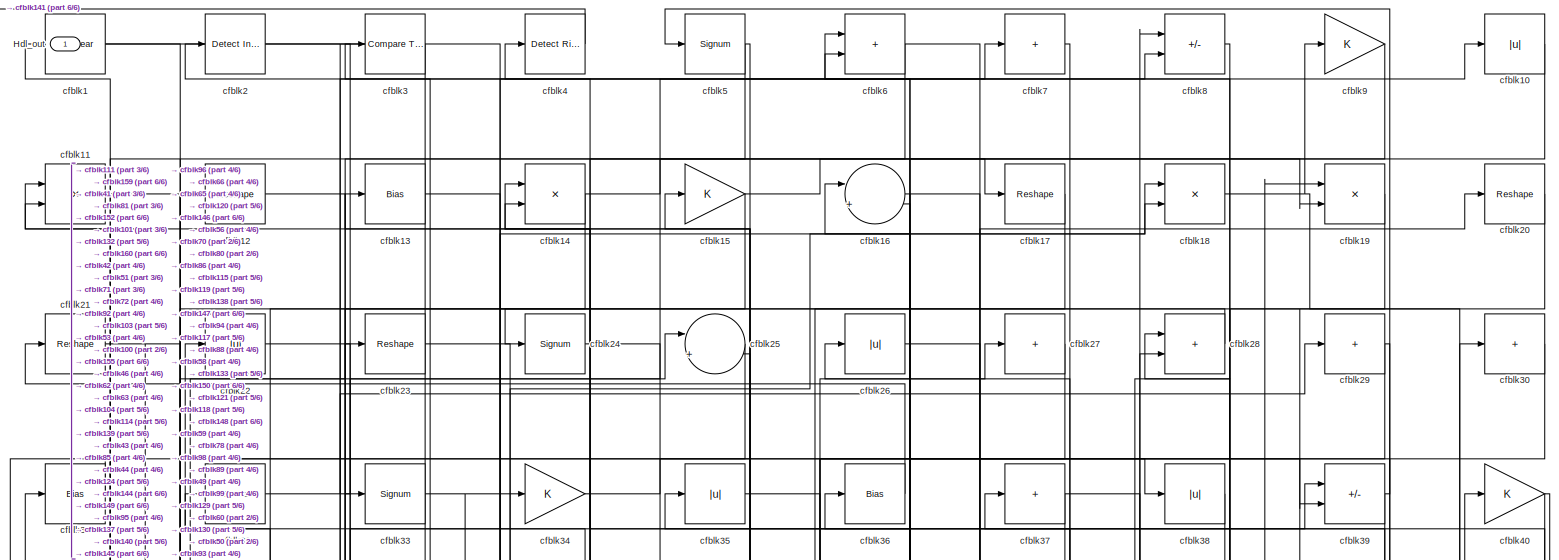
[diagram: root canvas - part 1/6, full width, top band]
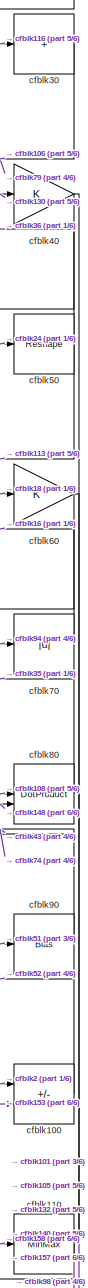
[diagram: root canvas - part 2/6, middle right region]
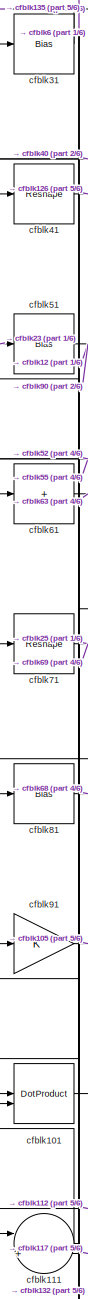
[diagram: root canvas - part 3/6, middle left region]
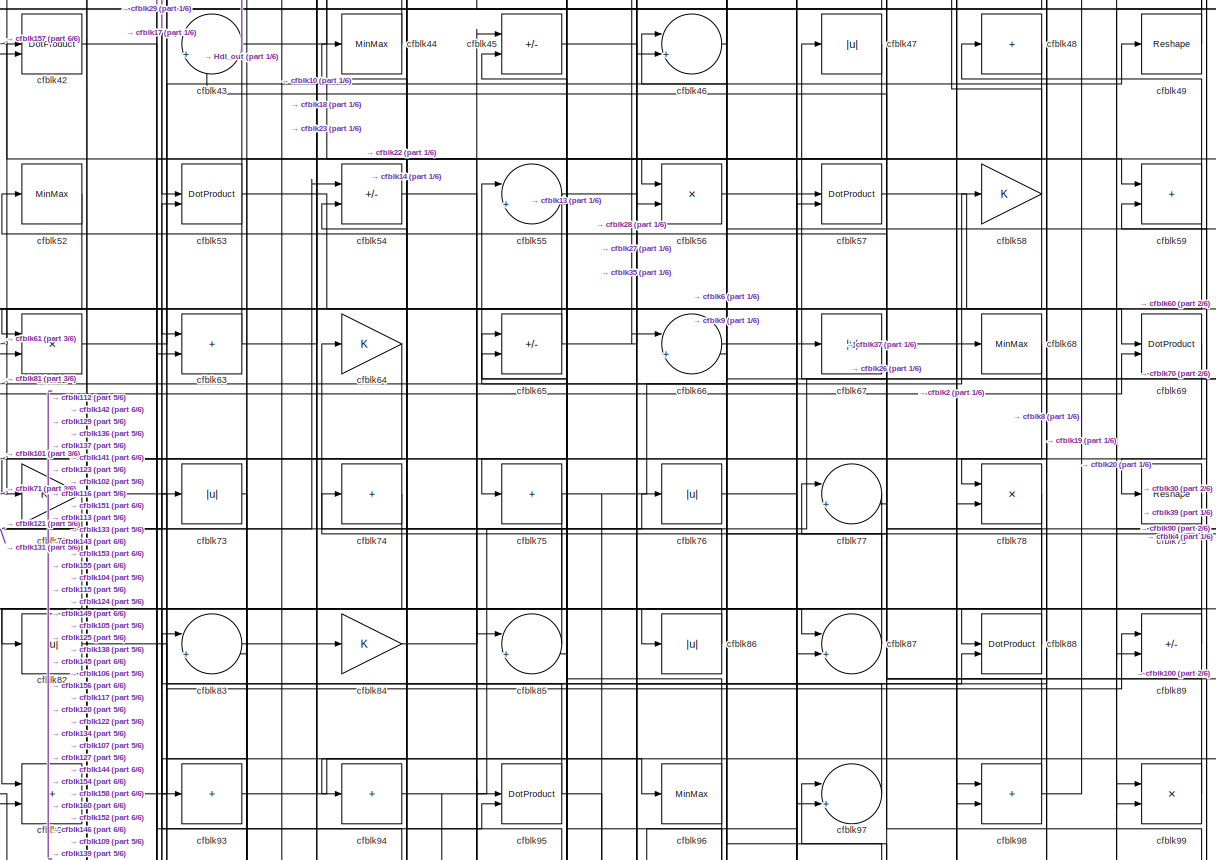
[diagram: root canvas - part 4/6, full width, middle band]
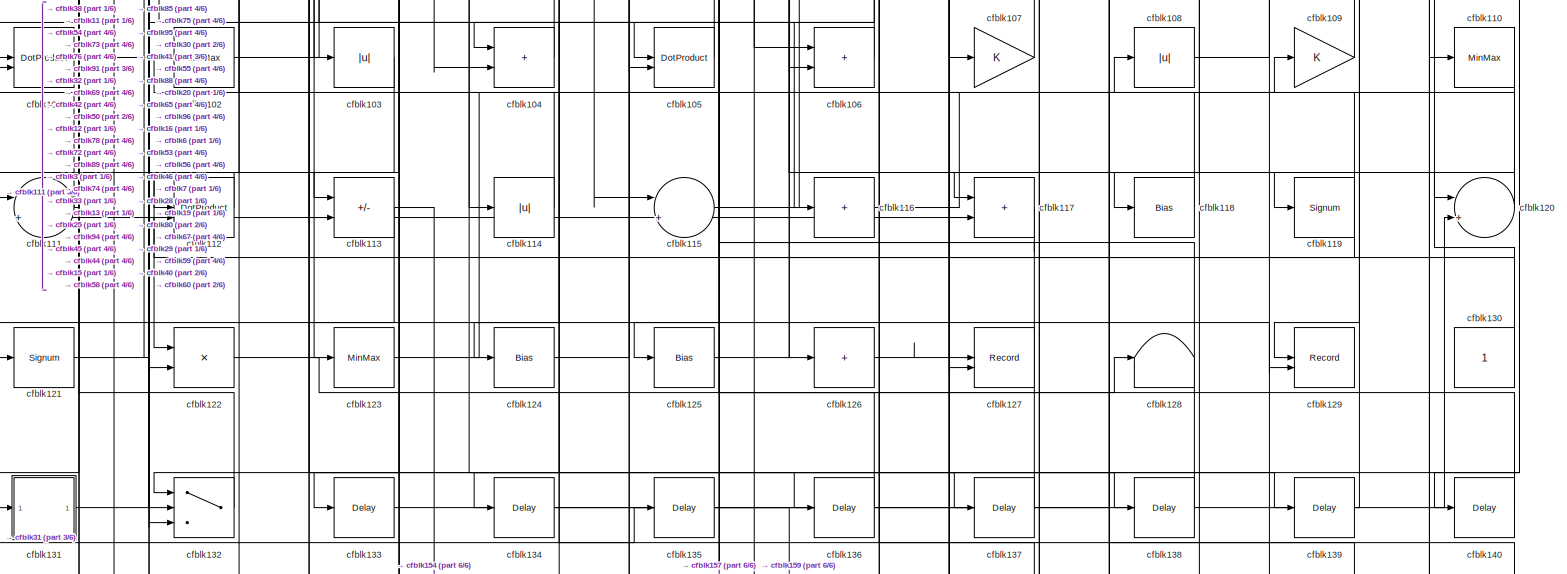
[diagram: root canvas - part 5/6, full width, bottom band]
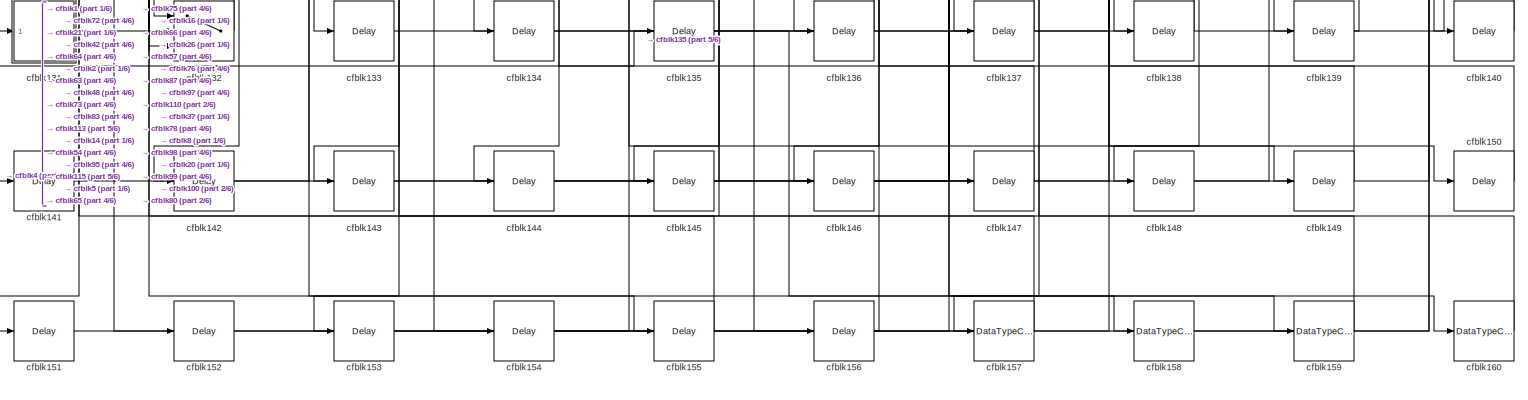
[diagram: root canvas - part 6/6, full width, bottom band]
MODEL slx_397ffaf1d0f8
KIND model
CONFIG AbsTol = auto
CONFIG EnableMultiTasking = off
CONFIG FixedStep = auto
CONFIG MaxStep = auto
CONFIG MinStep = auto
CONFIG RelTol = 1e-3
CONFIG SampleTimeConstraint = Unconstrained
CONFIG SolverName = VariableStepAuto
CONFIG StartTime = 0.0
CONFIG StopTime = 10.0
BLOCK [Outport] Hdl_out
  OutDataTypeStr = uint8
BLOCK [Reference] cfblk1  REF=simulink/Logic and Bit
Operations/Bit Clear
  LibrarySourceBlock = hdlsllib/Logic and Bit\nOperations/Bit Clear
  SourceBlock = simulink/Logic and Bit\nOperations/Bit Clear
  SourceType = Bit Clear
BLOCK [Abs] cfblk10
  OutDataTypeStr = uint8
  SaturateOnIntegerOverflow = off
BLOCK [Sum] cfblk100
  IconShape = rectangular
  Inputs = +-
  OutDataTypeStr = uint8
BLOCK [DotProduct] cfblk101
  OutDataTypeStr = uint8
BLOCK [MinMax] cfblk102
  OutDataTypeStr = uint8
BLOCK [Abs] cfblk103
  OutDataTypeStr = uint8
  SaturateOnIntegerOverflow = off
BLOCK [Sum] cfblk104
  IconShape = rectangular
  OutDataTypeStr = uint8
BLOCK [DotProduct] cfblk105
  OutDataTypeStr = uint8
BLOCK [Sum] cfblk106
  IconShape = rectangular
  OutDataTypeStr = uint8
BLOCK [Gain] cfblk107
  OutDataTypeStr = uint8
BLOCK [Abs] cfblk108
  OutDataTypeStr = uint8
  SaturateOnIntegerOverflow = off
BLOCK [Gain] cfblk109
  OutDataTypeStr = uint8
BLOCK [Product] cfblk11
  Inputs = */
  OutDataTypeStr = uint8
  RndMeth = Zero
  SaturateOnIntegerOverflow = on
BLOCK [MinMax] cfblk110
  OutDataTypeStr = uint8
BLOCK [Sum] cfblk111
  Inputs = |++
  OutDataTypeStr = uint8
BLOCK [DotProduct] cfblk112
  OutDataTypeStr = uint8
BLOCK [Sum] cfblk113
  IconShape = rectangular
  Inputs = +-
  OutDataTypeStr = uint8
BLOCK [Abs] cfblk114
  OutDataTypeStr = uint8
  SaturateOnIntegerOverflow = off
BLOCK [Sum] cfblk115
  Inputs = |++
  OutDataTypeStr = uint8
BLOCK [Sum] cfblk116
  IconShape = rectangular
  Inputs = +
  OutDataTypeStr = uint8
BLOCK [Sum] cfblk117
  IconShape = rectangular
  OutDataTypeStr = uint8
BLOCK [Bias] cfblk118
  Bias = 0.0
  SaturateOnIntegerOverflow = off
BLOCK [Signum] cfblk119
BLOCK [Reshape] cfblk12
BLOCK [Sum] cfblk120
  Inputs = |++
  OutDataTypeStr = uint8
BLOCK [Signum] cfblk121
BLOCK [Product] cfblk122
  Inputs = */
  OutDataTypeStr = uint8
  RndMeth = Zero
  SaturateOnIntegerOverflow = on
BLOCK [MinMax] cfblk123
  OutDataTypeStr = uint8
BLOCK [Bias] cfblk124
  Bias = 0.0
  SaturateOnIntegerOverflow = off
BLOCK [Bias] cfblk125
  Bias = 0.0
  SaturateOnIntegerOverflow = off
BLOCK [Sum] cfblk126
  IconShape = rectangular
  Inputs = +
  OutDataTypeStr = uint8
BLOCK [Record] cfblk127
  CompatibilityTag = XY
  FileSettingsInternal = {"entries":[{"content":{"excelSettings":{"content":{},"type":"Streamout.ExcelSettings"}},"type":"Streamout.FileSettingStorage","uuid":""}],"packageUris":["http:\/\/schema.mathworks.com\/mf0\/streamout_blocks\/R2020a"],"version":"1.0"}
  Layout = [1 1]
  SignalsInternal = {"entries":[{"content":{"signals":[{"content":{"blockPath":[],"dimensions":[1],"domain":"","lineColor":"#a2142f","plots":[1],"port":1,"signalID":46920,"signalName":"cfblk126"},"type":"RecordBlkView.Signal","uuid":""},{"content":{"blockPath":[],"dimensions":[1],"domain":"","lineColor":"#139fff","plots":[1],"port":2,"signalID":46923,"signalName":"cfblk56"},"type":"RecordBlkView.Signal","uuid":""}]},...<+143ch>
  VisualizationBindings = {"xyplotplugin":{"info":[{"series":[{"bindingParametersList":[{"parameter":"X-Axis","signalID":46920,"signalName":"cfblk126"},{"parameter":"Y-Axis","signalID":46923,"signalName":"cfblk56"}],"seriesID":23758}],"subplotID":1}]}}
  st = -1
BLOCK [Terminator] cfblk128
BLOCK [Record] cfblk129
  CompatibilityTag = XY
  FileSettingsInternal = {"entries":[{"content":{"excelSettings":{"content":{},"type":"Streamout.ExcelSettings"}},"type":"Streamout.FileSettingStorage","uuid":""}],"packageUris":["http:\/\/schema.mathworks.com\/mf0\/streamout_blocks\/R2020a"],"version":"1.0"}
  Layout = [1 1]
  SignalsInternal = {"entries":[{"content":{"signals":[{"content":{"blockPath":[],"dimensions":[1],"domain":"","lineColor":"#a2142f","plots":[1],"port":1,"signalID":46912,"signalName":"cfblk29"},"type":"RecordBlkView.Signal","uuid":""},{"content":{"blockPath":[],"dimensions":[1],"domain":"","lineColor":"#139fff","plots":[1],"port":2,"signalID":46915,"signalName":"cfblk42"},"type":"RecordBlkView.Signal","uuid":""}]},"...<+142ch>
  VisualizationBindings = {"xyplotplugin":{"info":[{"series":[{"bindingParametersList":[{"parameter":"X-Axis","signalID":46912,"signalName":"cfblk29"},{"parameter":"Y-Axis","signalID":46915,"signalName":"cfblk42"}],"seriesID":30357}],"subplotID":1}]}}
  st = -1
BLOCK [Bias] cfblk13
  Bias = 0.0
  SaturateOnIntegerOverflow = off
BLOCK [Constant] cfblk130
  OutDataTypeStr = uint8
  SampleTime = -1
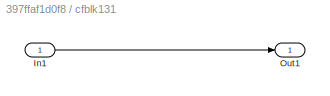
BLOCK [SubSystem] cfblk131
  LibrarySourceBlock = hdlsllib/Ports &\nSubsystems/Subsystem
BLOCK [Inport] cfblk131/In1
BLOCK [Outport] cfblk131/Out1
BLOCK [Switch] cfblk132
  InputSameDT = off
  OutDataTypeStr = uint8
  SaturateOnIntegerOverflow = off
BLOCK [Delay] cfblk133
  InputPortMap = u0
  SampleTime = 1
BLOCK [Delay] cfblk134
  InputPortMap = u0
  SampleTime = 1
BLOCK [Delay] cfblk135
  InputPortMap = u0
  SampleTime = 1
BLOCK [Delay] cfblk136
  InputPortMap = u0
  SampleTime = 1
BLOCK [Delay] cfblk137
  InputPortMap = u0
  SampleTime = 1
BLOCK [Delay] cfblk138
  InputPortMap = u0
  SampleTime = 1
BLOCK [Delay] cfblk139
  InputPortMap = u0
  SampleTime = 1
BLOCK [Product] cfblk14
  Inputs = */
  OutDataTypeStr = uint8
  RndMeth = Zero
  SaturateOnIntegerOverflow = on
BLOCK [Delay] cfblk140
  InputPortMap = u0
  SampleTime = 1
BLOCK [Delay] cfblk141
  InputPortMap = u0
  SampleTime = 1
BLOCK [Delay] cfblk142
  InputPortMap = u0
  SampleTime = 1
BLOCK [Delay] cfblk143
  InputPortMap = u0
  SampleTime = 1
BLOCK [Delay] cfblk144
  InputPortMap = u0
  SampleTime = 1
BLOCK [Delay] cfblk145
  InputPortMap = u0
  SampleTime = 1
BLOCK [Delay] cfblk146
  InputPortMap = u0
  SampleTime = 1
BLOCK [Delay] cfblk147
  InputPortMap = u0
  SampleTime = 1
BLOCK [Delay] cfblk148
  InputPortMap = u0
  SampleTime = 1
BLOCK [Delay] cfblk149
  InputPortMap = u0
  SampleTime = 1
BLOCK [Gain] cfblk15
  OutDataTypeStr = uint8
BLOCK [Delay] cfblk150
  InputPortMap = u0
  SampleTime = 1
BLOCK [Delay] cfblk151
  InputPortMap = u0
  SampleTime = 1
BLOCK [Delay] cfblk152
  InputPortMap = u0
  SampleTime = 1
BLOCK [Delay] cfblk153
  InputPortMap = u0
  SampleTime = 1
BLOCK [Delay] cfblk154
  InputPortMap = u0
  SampleTime = 1
BLOCK [Delay] cfblk155
  InputPortMap = u0
  SampleTime = 1
BLOCK [Delay] cfblk156
  InputPortMap = u0
  SampleTime = 1
BLOCK [DataTypeConversion] cfblk157
  OutDataTypeStr = uint8
  RndMeth = Floor
  SaturateOnIntegerOverflow = off
BLOCK [DataTypeConversion] cfblk158
  OutDataTypeStr = uint8
  RndMeth = Floor
  SaturateOnIntegerOverflow = off
BLOCK [DataTypeConversion] cfblk159
  OutDataTypeStr = uint8
  RndMeth = Floor
  SaturateOnIntegerOverflow = off
BLOCK [Sum] cfblk16
  Inputs = |++
  OutDataTypeStr = uint8
BLOCK [DataTypeConversion] cfblk160
  OutDataTypeStr = uint8
  RndMeth = Floor
  SaturateOnIntegerOverflow = off
BLOCK [Reshape] cfblk17
BLOCK [Product] cfblk18
  Inputs = */
  OutDataTypeStr = uint8
  RndMeth = Zero
  SaturateOnIntegerOverflow = on
BLOCK [Product] cfblk19
  Inputs = */
  OutDataTypeStr = uint8
  RndMeth = Zero
  SaturateOnIntegerOverflow = on
BLOCK [Reference] cfblk2  REF=simulink/Logic and Bit
Operations/Detect
Increase
  LibrarySourceBlock = hdlsllib/Logic and Bit\nOperations/Detect\nIncrease
  SourceBlock = simulink/Logic and Bit\nOperations/Detect\nIncrease
  SourceType = Detect Increase
BLOCK [Reshape] cfblk20
BLOCK [Reshape] cfblk21
BLOCK [Abs] cfblk22
  OutDataTypeStr = uint8
  SaturateOnIntegerOverflow = off
BLOCK [Reshape] cfblk23
BLOCK [Signum] cfblk24
BLOCK [Sum] cfblk25
  Inputs = |++
  OutDataTypeStr = uint8
BLOCK [Abs] cfblk26
  OutDataTypeStr = uint8
  SaturateOnIntegerOverflow = off
BLOCK [Sum] cfblk27
  IconShape = rectangular
  Inputs = +
  OutDataTypeStr = uint8
BLOCK [Sum] cfblk28
  IconShape = rectangular
  OutDataTypeStr = uint8
BLOCK [Sum] cfblk29
  IconShape = rectangular
  Inputs = +
  OutDataTypeStr = uint8
BLOCK [Reference] cfblk3  REF=hdlsllib/Logic and Bit
Operations/Compare
To Zero
  SourceBlock = hdlsllib/Logic and Bit\nOperations/Compare\nTo Zero
  SourceType = Compare To Zero
BLOCK [Sum] cfblk30
  IconShape = rectangular
  Inputs = +
  OutDataTypeStr = uint8
BLOCK [Bias] cfblk31
  Bias = 0.0
  SaturateOnIntegerOverflow = off
BLOCK [MinMax] cfblk32
  OutDataTypeStr = uint8
BLOCK [Signum] cfblk33
BLOCK [Gain] cfblk34
  OutDataTypeStr = uint8
BLOCK [Abs] cfblk35
  OutDataTypeStr = uint8
  SaturateOnIntegerOverflow = off
BLOCK [Bias] cfblk36
  Bias = 0.0
  SaturateOnIntegerOverflow = off
BLOCK [Sum] cfblk37
  IconShape = rectangular
  Inputs = +
  OutDataTypeStr = uint8
BLOCK [Abs] cfblk38
  OutDataTypeStr = uint8
  SaturateOnIntegerOverflow = off
BLOCK [Sum] cfblk39
  IconShape = rectangular
  Inputs = +-
  OutDataTypeStr = uint8
BLOCK [Reference] cfblk4  REF=hdlsllib/Logic and Bit
Operations/Detect Rise
Positive
  SourceBlock = hdlsllib/Logic and Bit\nOperations/Detect Rise\nPositive
  SourceType = Detect Rise Positive
BLOCK [Gain] cfblk40
  OutDataTypeStr = uint8
BLOCK [Reshape] cfblk41
BLOCK [DotProduct] cfblk42
  OutDataTypeStr = uint8
BLOCK [Sum] cfblk43
  Inputs = |++
  OutDataTypeStr = uint8
BLOCK [MinMax] cfblk44
  OutDataTypeStr = uint8
BLOCK [Sum] cfblk45
  IconShape = rectangular
  Inputs = +-
  OutDataTypeStr = uint8
BLOCK [Sum] cfblk46
  Inputs = |++
  OutDataTypeStr = uint8
BLOCK [Abs] cfblk47
  OutDataTypeStr = uint8
  SaturateOnIntegerOverflow = off
BLOCK [Sum] cfblk48
  IconShape = rectangular
  Inputs = +
  OutDataTypeStr = uint8
BLOCK [Reshape] cfblk49
BLOCK [Signum] cfblk5
BLOCK [Reshape] cfblk50
BLOCK [Bias] cfblk51
  Bias = 0.0
  SaturateOnIntegerOverflow = off
BLOCK [MinMax] cfblk52
  OutDataTypeStr = uint8
BLOCK [DotProduct] cfblk53
  OutDataTypeStr = uint8
BLOCK [Sum] cfblk54
  IconShape = rectangular
  Inputs = +-
  OutDataTypeStr = uint8
BLOCK [Sum] cfblk55
  Inputs = |++
  OutDataTypeStr = uint8
BLOCK [Product] cfblk56
  Inputs = */
  OutDataTypeStr = uint8
  RndMeth = Zero
  SaturateOnIntegerOverflow = on
BLOCK [DotProduct] cfblk57
  OutDataTypeStr = uint8
BLOCK [Gain] cfblk58
  OutDataTypeStr = uint8
BLOCK [Sum] cfblk59
  IconShape = rectangular
  OutDataTypeStr = uint8
BLOCK [Sum] cfblk6
  IconShape = rectangular
  OutDataTypeStr = uint8
BLOCK [Gain] cfblk60
  OutDataTypeStr = uint8
BLOCK [Sum] cfblk61
  IconShape = rectangular
  Inputs = +
  OutDataTypeStr = uint8
BLOCK [Product] cfblk62
  Inputs = */
  OutDataTypeStr = uint8
  RndMeth = Zero
  SaturateOnIntegerOverflow = on
BLOCK [Sum] cfblk63
  IconShape = rectangular
  OutDataTypeStr = uint8
BLOCK [Gain] cfblk64
  OutDataTypeStr = uint8
BLOCK [Sum] cfblk65
  IconShape = rectangular
  Inputs = +-
  OutDataTypeStr = uint8
BLOCK [Sum] cfblk66
  Inputs = |++
  OutDataTypeStr = uint8
BLOCK [Abs] cfblk67
  OutDataTypeStr = uint8
  SaturateOnIntegerOverflow = off
BLOCK [MinMax] cfblk68
  OutDataTypeStr = uint8
BLOCK [DotProduct] cfblk69
  OutDataTypeStr = uint8
BLOCK [Sum] cfblk7
  IconShape = rectangular
  Inputs = +
  OutDataTypeStr = uint8
BLOCK [Abs] cfblk70
  OutDataTypeStr = uint8
  SaturateOnIntegerOverflow = off
BLOCK [Reshape] cfblk71
BLOCK [Gain] cfblk72
  OutDataTypeStr = uint8
BLOCK [Abs] cfblk73
  OutDataTypeStr = uint8
  SaturateOnIntegerOverflow = off
BLOCK [Sum] cfblk74
  IconShape = rectangular
  Inputs = +
  OutDataTypeStr = uint8
BLOCK [Sum] cfblk75
  IconShape = rectangular
  Inputs = +
  OutDataTypeStr = uint8
BLOCK [Abs] cfblk76
  OutDataTypeStr = uint8
  SaturateOnIntegerOverflow = off
BLOCK [Sum] cfblk77
  Inputs = |++
  OutDataTypeStr = uint8
BLOCK [Product] cfblk78
  Inputs = */
  OutDataTypeStr = uint8
  RndMeth = Zero
  SaturateOnIntegerOverflow = on
BLOCK [Reshape] cfblk79
BLOCK [Sum] cfblk8
  IconShape = rectangular
  Inputs = +-
  OutDataTypeStr = uint8
BLOCK [DotProduct] cfblk80
  OutDataTypeStr = uint8
BLOCK [Bias] cfblk81
  Bias = 0.0
  SaturateOnIntegerOverflow = off
BLOCK [Abs] cfblk82
  OutDataTypeStr = uint8
  SaturateOnIntegerOverflow = off
BLOCK [Sum] cfblk83
  Inputs = |++
  OutDataTypeStr = uint8
BLOCK [Gain] cfblk84
  OutDataTypeStr = uint8
BLOCK [Sum] cfblk85
  Inputs = |++
  OutDataTypeStr = uint8
BLOCK [Abs] cfblk86
  OutDataTypeStr = uint8
  SaturateOnIntegerOverflow = off
BLOCK [Sum] cfblk87
  Inputs = |++
  OutDataTypeStr = uint8
BLOCK [DotProduct] cfblk88
  OutDataTypeStr = uint8
BLOCK [Sum] cfblk89
  IconShape = rectangular
  Inputs = +-
  OutDataTypeStr = uint8
BLOCK [Gain] cfblk9
  OutDataTypeStr = uint8
BLOCK [Bias] cfblk90
  Bias = 0.0
  SaturateOnIntegerOverflow = off
BLOCK [Gain] cfblk91
  OutDataTypeStr = uint8
BLOCK [Sum] cfblk92
  IconShape = rectangular
  OutDataTypeStr = uint8
BLOCK [Sum] cfblk93
  IconShape = rectangular
  Inputs = +
  OutDataTypeStr = uint8
BLOCK [Sum] cfblk94
  IconShape = rectangular
  Inputs = +
  OutDataTypeStr = uint8
BLOCK [DotProduct] cfblk95
  OutDataTypeStr = uint8
BLOCK [MinMax] cfblk96
  OutDataTypeStr = uint8
BLOCK [Sum] cfblk97
  Inputs = |++
  OutDataTypeStr = uint8
BLOCK [Sum] cfblk98
  IconShape = rectangular
  OutDataTypeStr = uint8
BLOCK [Product] cfblk99
  Inputs = */
  OutDataTypeStr = uint8
  RndMeth = Zero
  SaturateOnIntegerOverflow = on
LINE cfblk100:1 -> cfblk52:1
NET cfblk101:1 -> cfblk23:1, cfblk51:1
LINE cfblk102:1 -> cfblk89:1
LINE cfblk103:1 -> cfblk122:1
LINE cfblk104:1 -> cfblk53:2
LINE cfblk105:1 -> cfblk44:1
NET cfblk106:1 -> cfblk104:1, cfblk65:1
LINE cfblk107:1 -> cfblk46:1
LINE cfblk108:1 -> cfblk80:1
LINE cfblk109:1 -> cfblk67:1
LINE cfblk10:1 -> cfblk43:1
LINE cfblk110:1 -> cfblk157:1
NET cfblk111:1 -> cfblk11:1, cfblk31:1
LINE cfblk112:1 -> cfblk111:1
NET cfblk113:1 -> cfblk131:1, cfblk154:1
LINE cfblk114:1 -> cfblk32:1
NET cfblk115:1 -> cfblk20:1, cfblk85:2
LINE cfblk116:1 -> cfblk30:1
LINE cfblk117:1 -> cfblk111:2
LINE cfblk118:1 -> cfblk3:1
NET cfblk119:1 -> cfblk102:1, cfblk112:2
LINE cfblk11:1 -> cfblk132:2
NET cfblk120:1 -> cfblk108:1, cfblk6:2
NET cfblk121:1 -> cfblk54:1, cfblk76:1
LINE cfblk122:1 -> cfblk128:1
LINE cfblk123:1 -> cfblk109:1
LINE cfblk124:1 -> cfblk45:1
LINE cfblk125:1 -> cfblk88:2
LINE cfblk126:1 -> cfblk127:1
LINE cfblk12:1 -> cfblk103:1
NET cfblk130:1 -> cfblk15:1, cfblk40:1
LINE cfblk131/In1:1 -> cfblk131/Out1:1
LINE cfblk131:1 -> cfblk73:1
LINE cfblk132:1 -> cfblk91:1
LINE cfblk133:1 -> cfblk28:2
LINE cfblk134:1 -> cfblk120:2
LINE cfblk135:1 -> cfblk159:1
LINE cfblk136:1 -> cfblk45:2
LINE cfblk137:1 -> cfblk11:2
LINE cfblk138:1 -> cfblk55:2
LINE cfblk139:1 -> cfblk59:2
LINE cfblk13:1 -> cfblk114:1
LINE cfblk140:1 -> cfblk25:2
LINE cfblk141:1 -> cfblk63:2
LINE cfblk142:1 -> cfblk98:1
LINE cfblk143:1 -> cfblk57:1
LINE cfblk144:1 -> cfblk97:2
LINE cfblk145:1 -> cfblk65:2
LINE cfblk146:1 -> cfblk99:1
LINE cfblk147:1 -> cfblk16:2
LINE cfblk148:1 -> cfblk80:2
LINE cfblk149:1 -> cfblk14:2
NET cfblk14:1 -> cfblk19:2, cfblk72:1
LINE cfblk150:1 -> cfblk8:1
LINE cfblk151:1 -> cfblk95:1
LINE cfblk152:1 -> cfblk78:2
LINE cfblk153:1 -> cfblk100:2
LINE cfblk154:1 -> cfblk87:2
LINE cfblk155:1 -> cfblk83:2
LINE cfblk156:1 -> cfblk66:2
NET cfblk157:1 -> cfblk115:2, cfblk42:1
LINE cfblk158:1 -> cfblk110:1
LINE cfblk159:1 -> cfblk1:1
NET cfblk15:1 -> cfblk132:3, cfblk17:1
LINE cfblk160:1 -> cfblk97:1
NET cfblk16:1 -> cfblk119:1, cfblk146:1
LINE cfblk17:1 -> cfblk53:1
NET cfblk18:1 -> cfblk60:1, cfblk9:1
NET cfblk19:1 -> cfblk118:1, cfblk24:1
LINE cfblk1:1 -> cfblk160:1
NET cfblk20:1 -> cfblk148:1, cfblk89:2
NET cfblk21:1 -> cfblk152:1, cfblk39:2
LINE cfblk22:1 -> cfblk46:2
LINE cfblk23:1 -> cfblk85:1
LINE cfblk24:1 -> cfblk50:1
NET cfblk25:1 -> cfblk124:1, cfblk81:1
LINE cfblk26:1 -> cfblk147:1
LINE cfblk27:1 -> cfblk56:2
LINE cfblk28:1 -> cfblk66:1
NET cfblk29:1 -> cfblk129:1, cfblk86:1
NET cfblk2:1 -> cfblk100:1, cfblk155:1
NET cfblk30:1 -> cfblk106:2, cfblk79:1
LINE cfblk31:1 -> cfblk135:1
NET cfblk32:1 -> cfblk33:1, cfblk7:1, cfblk8:2
NET cfblk33:1 -> cfblk104:2, cfblk139:1
LINE cfblk34:1 -> cfblk38:1
LINE cfblk35:1 -> cfblk59:1
LINE cfblk36:1 -> cfblk21:1
NET cfblk37:1 -> cfblk150:1, cfblk94:1
LINE cfblk38:1 -> cfblk121:1
NET cfblk39:1 -> cfblk5:1, cfblk99:2
LINE cfblk3:1 -> cfblk34:1
NET cfblk40:1 -> cfblk101:2, cfblk132:1
LINE cfblk41:1 -> cfblk126:1
NET cfblk42:1 -> cfblk129:2, cfblk136:1, cfblk137:1
LINE cfblk43:1 -> cfblk18:1
LINE cfblk44:1 -> cfblk22:1
LINE cfblk45:1 -> cfblk120:1
LINE cfblk46:1 -> cfblk6:1
LINE cfblk47:1 -> cfblk75:1
LINE cfblk48:1 -> cfblk143:1
LINE cfblk49:1 -> cfblk4:1
LINE cfblk4:1 -> cfblk141:1
NET cfblk50:1 -> cfblk113:2, cfblk36:1
NET cfblk51:1 -> cfblk12:1, cfblk90:1
LINE cfblk52:1 -> cfblk61:1
LINE cfblk53:1 -> cfblk107:1
LINE cfblk54:1 -> cfblk149:1
NET cfblk55:1 -> cfblk117:2, cfblk71:1, cfblk92:2
LINE cfblk56:1 -> cfblk127:2
LINE cfblk57:1 -> cfblk69:1
NET cfblk58:1 -> cfblk125:1, cfblk2:1
NET cfblk59:1 -> cfblk28:1, cfblk62:2
NET cfblk5:1 -> cfblk144:1, cfblk145:1
NET cfblk60:1 -> cfblk105:2, cfblk140:1, cfblk98:2
LINE cfblk61:1 -> cfblk63:1
LINE cfblk62:1 -> cfblk39:1
NET cfblk63:1 -> Hdl_out:1, cfblk18:2
LINE cfblk64:1 -> cfblk142:1
NET cfblk65:1 -> cfblk27:1, cfblk62:1
LINE cfblk66:1 -> cfblk47:1
LINE cfblk67:1 -> cfblk58:1
LINE cfblk68:1 -> cfblk101:1
NET cfblk69:1 -> cfblk112:1, cfblk77:2, cfblk93:1
NET cfblk6:1 -> cfblk138:1, cfblk41:1, cfblk42:2
LINE cfblk70:1 -> cfblk16:1
NET cfblk71:1 -> cfblk25:1, cfblk69:2
NET cfblk72:1 -> cfblk116:1, cfblk151:1
LINE cfblk73:1 -> cfblk153:1
LINE cfblk74:1 -> cfblk113:1
NET cfblk75:1 -> cfblk133:1, cfblk156:1, cfblk57:2
LINE cfblk76:1 -> cfblk158:1
LINE cfblk77:1 -> cfblk92:1
LINE cfblk78:1 -> cfblk123:1
LINE cfblk79:1 -> cfblk82:1
LINE cfblk7:1 -> cfblk117:1
LINE cfblk80:1 -> cfblk35:1
LINE cfblk81:1 -> cfblk68:1
LINE cfblk82:1 -> cfblk48:1
LINE cfblk83:1 -> cfblk84:1
LINE cfblk84:1 -> cfblk87:1
LINE cfblk85:1 -> cfblk54:2
LINE cfblk86:1 -> cfblk64:1
LINE cfblk87:1 -> cfblk55:1
LINE cfblk88:1 -> cfblk26:1
LINE cfblk89:1 -> cfblk88:1
LINE cfblk8:1 -> cfblk78:1
NET cfblk90:1 -> cfblk43:2, cfblk74:1
LINE cfblk91:1 -> cfblk105:1
NET cfblk92:1 -> cfblk29:1, cfblk49:1, cfblk95:2
NET cfblk93:1 -> cfblk10:1, cfblk96:1
NET cfblk94:1 -> cfblk115:1, cfblk70:1
NET cfblk95:1 -> cfblk106:1, cfblk14:1
NET cfblk96:1 -> cfblk122:2, cfblk134:1, cfblk13:1
LINE cfblk97:1 -> cfblk83:1
NET cfblk98:1 -> cfblk19:1, cfblk77:1
LINE cfblk99:1 -> cfblk37:1
LINE cfblk9:1 -> cfblk56:1
note: NET lines group one-source signal fan-out (src -> all destinations, sorted); 1:1 wires keep LINE
